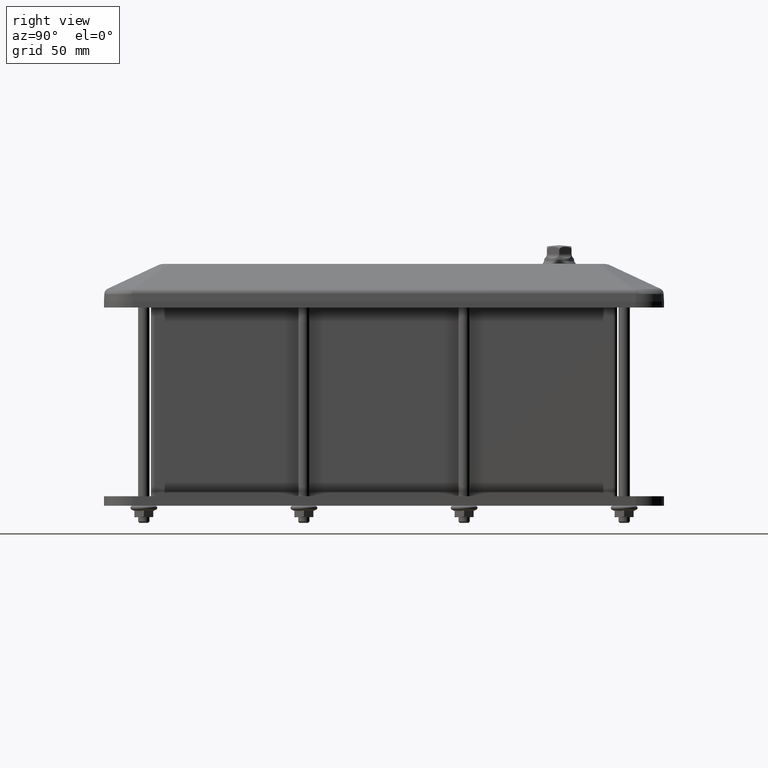
[diagram: clean part render]
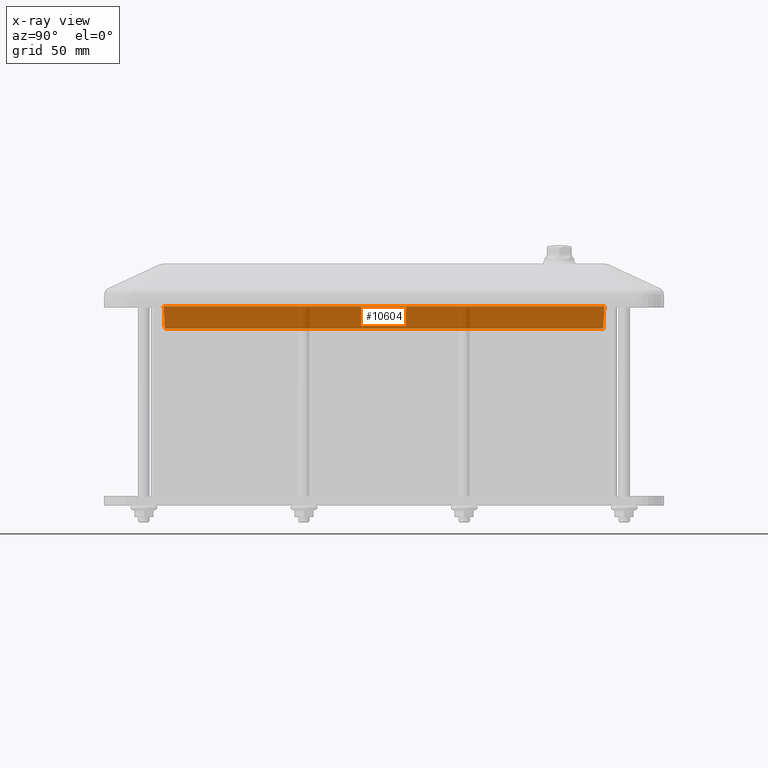
[diagram: x-ray — body ghosted, one internal face saturated and labeled with its STEP entity id]
A machine part, right view, then the same camera in x-ray: the body is ghosted and one INTERNAL B-rep face — a face not visible from any outside direction — is saturated and labeled: STEP entity #10604.
In plain terms, the highlighted planar face has unit normal (-0.9986, -0, -0.0523).
Its self-contained STEP definition (entity closure, byte-faithful):
#930=PLANE('',#11556);
#1465=FACE_OUTER_BOUND('',#2134,.T.);
#2134=EDGE_LOOP('',(#8973,#8974,#8975,#8976));
#2494=LINE('',#17164,#3166);
#2501=LINE('',#17181,#3173);
#2510=LINE('',#17218,#3182);
#2834=LINE('',#18673,#3506);
#3166=VECTOR('',#13318,10.);
#3173=VECTOR('',#13335,2.);
#3182=VECTOR('',#13366,10.);
#3506=VECTOR('',#13992,10.);
#4518=VERTEX_POINT('',#17047);
#4531=VERTEX_POINT('',#17157);
#4537=VERTEX_POINT('',#17180);
#4554=VERTEX_POINT('',#17217);
#5793=EDGE_CURVE('',#4531,#4518,#2494,.T.);
#5801=EDGE_CURVE('',#4518,#4537,#2501,.T.);
#5819=EDGE_CURVE('',#4554,#4537,#2510,.T.);
#6243=EDGE_CURVE('',#4554,#4531,#2834,.T.);
#8973=ORIENTED_EDGE('',*,*,#5793,.F.);
#8974=ORIENTED_EDGE('',*,*,#6243,.F.);
#8975=ORIENTED_EDGE('',*,*,#5819,.T.);
#8976=ORIENTED_EDGE('',*,*,#5801,.F.);
#10604=ADVANCED_FACE('',(#1465),#930,.T.);
#11556=AXIS2_PLACEMENT_3D('',#18672,#13990,#13991);
#13318=DIRECTION('',(-1.51179305480872E-16,1.,-3.91427279952084E-31));
#13335=DIRECTION('',(-0.0522644276887139,0.0522644276887139,0.997264688634237));
#13366=DIRECTION('',(-1.51179305480872E-16,1.,0.));
#13990=DIRECTION('center_axis',(-0.998629534754574,-1.50972119496883E-16,
-0.0523359562429438));
#13991=DIRECTION('ref_axis',(1.51179305480872E-16,-1.,9.24446373305873E-33));
#13992=DIRECTION('',(0.0522644276887139,0.0522644276887139,-0.997264688634237));
#17047=CARTESIAN_POINT('',(-70.2448494094737,115.447590339964,-31.0523359562429));
#17157=CARTESIAN_POINT('',(-70.2448494094736,-115.447590339964,-31.052335956243));
#17164=CARTESIAN_POINT('',(-70.2448494094737,58.8906881198391,-31.052335956243));
#17180=CARTESIAN_POINT('',(-70.8660040162569,116.068744946748,-19.2));
#17181=CARTESIAN_POINT('',(-70.1134262545243,115.316167185015,-33.5600391397661));
#17217=CARTESIAN_POINT('',(-70.8660040162569,-116.068744946748,-19.2));
#17218=CARTESIAN_POINT('',(-70.8660040162569,122.,-19.2));
#18672=CARTESIAN_POINT('Origin',(-70.3000000000001,117.5,-30.));
#18673=CARTESIAN_POINT('',(-69.9844961315673,-115.187237062058,-36.0201724390719));